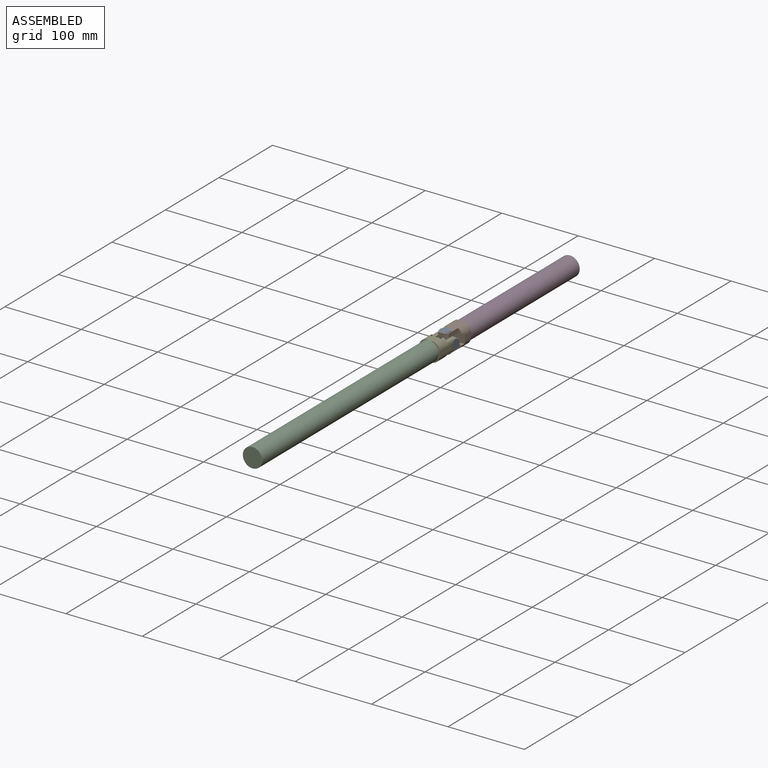
[diagram: assembled view]
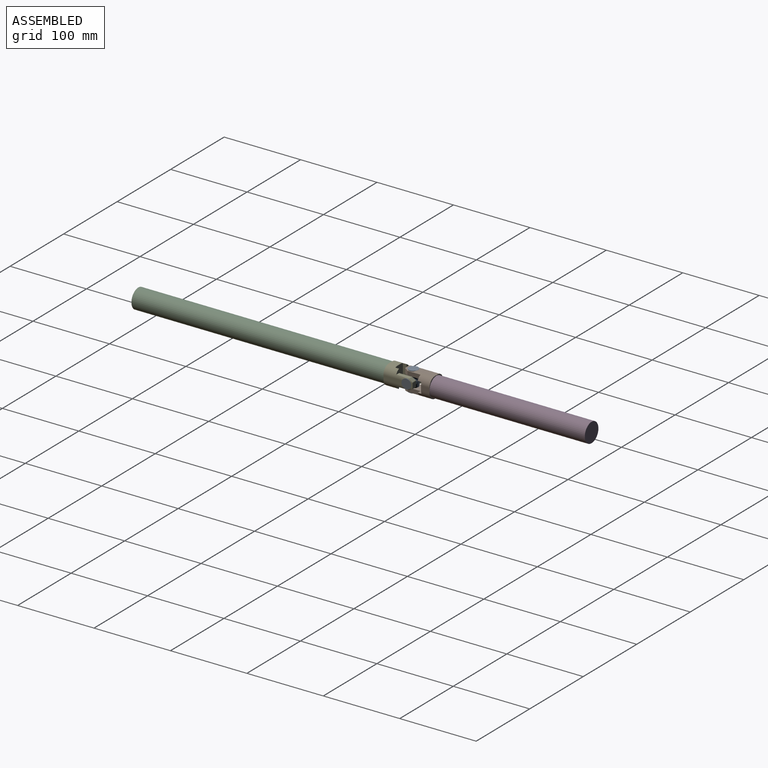
[diagram: assembled view, second angle]
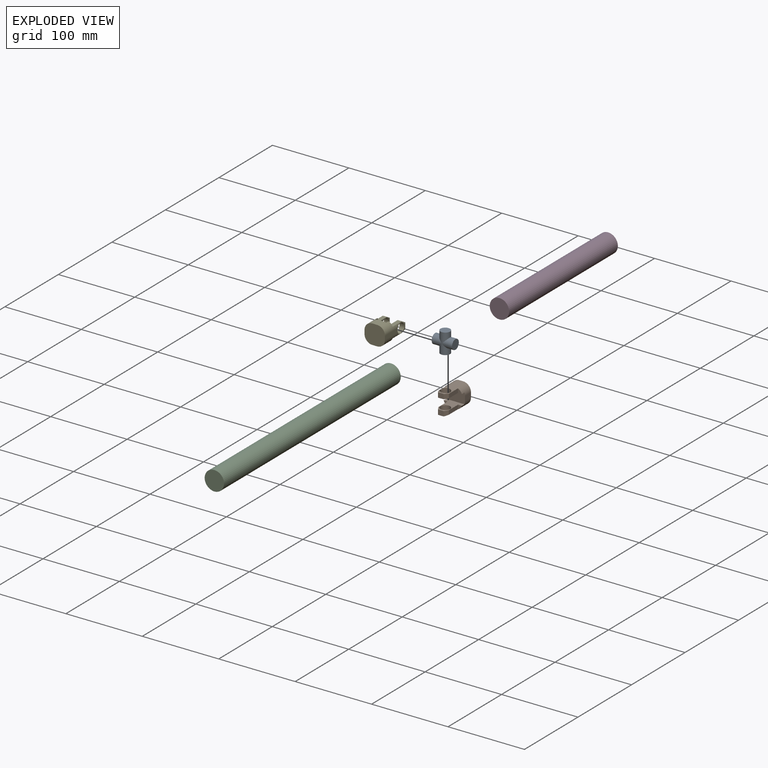
[diagram: exploded view]
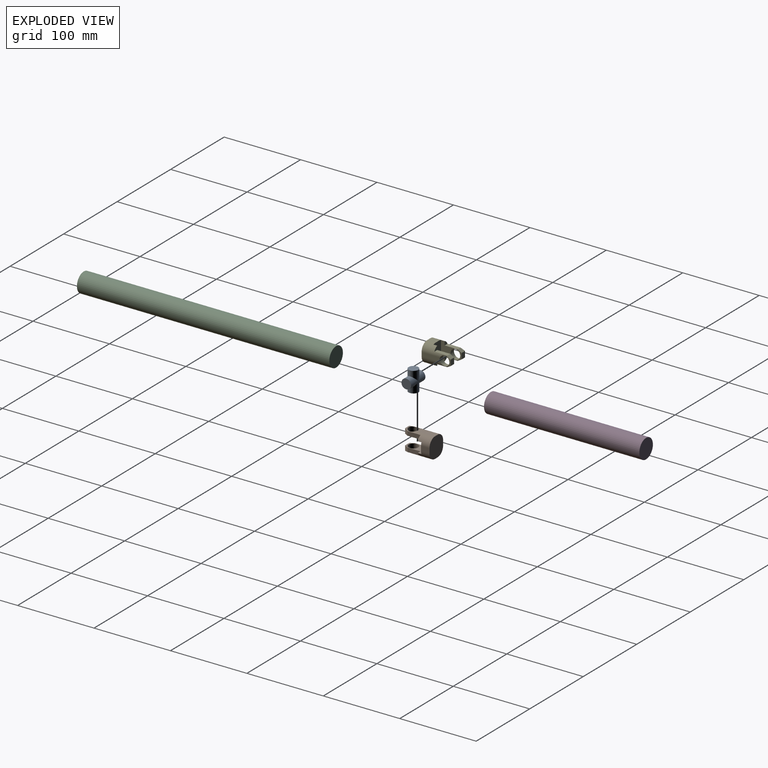
[diagram: exploded view, second angle]
ASSEMBLY  parts=5 mates=4
PART A: 8 faces, bbox 26.7x26.7x12.7 mm
  f0: cylinder r=6.35mm len=13.34mm, axis (0,1,0), area 370.8mm2, adj f1,f3,f6
  f1: plane 12.7x12.7mm, normal (0,-1,0), area 126.7mm2, adj f0
  f2: plane 12.7x12.7mm, normal (-1,0,0), area 126.7mm2, adj f3
  f3: cylinder r=6.35mm len=13.34mm, axis (-1,0,0), area 370.8mm2, adj f0,f2,f5
  f4: plane 12.7x12.7mm, normal (0,1,0), area 126.7mm2, adj f5
  f5: cylinder r=6.35mm len=13.34mm, axis (0,1,0), area 370.8mm2, adj f3,f4,f6
  f6: cylinder r=6.35mm len=13.34mm, axis (-1,0,0), area 370.8mm2, adj f0,f5,f7
  f7: plane 12.7x12.7mm, normal (1,0,0), area 126.7mm2, adj f6
PART B: 34 faces, bbox 38.2x25.5x26.8 mm
  f0: plane 27.01x23.95mm, normal (0,0,-1), area 278.8mm2, adj f3,f5,f6,f8,f12,f13,f18,f22
  f1: plane 27.01x23.92mm, normal (0,0,1), area 278.4mm2, adj f2,f4,f7,f9,f10,f11,f18,f19
  f2: cylinder r=10.16mm len=6.35mm, axis (0,0,-1), area 8.3mm2, adj f1,f11,f19,f32
  f3: cylinder r=10.16mm len=6.35mm, axis (0,0,-1), area 8.3mm2, adj f0,f12,f22,f31
  f4: cylinder r=10.16mm len=6.35mm, axis (0,0,1), area 8.4mm2, adj f1,f10,f19,f33
  f5: cylinder r=10.16mm len=6.35mm, axis (0,0,1), area 8.4mm2, adj f0,f13,f22,f30
  f6: plane 16.98x5.41mm, normal (0,-1,0), area 91.6mm2, adj f0,f13,f26,f30
  f7: plane 17x5.38mm, normal (0,-1,0), area 91.4mm2, adj f1,f10,f27,f33
  f8: plane 17.03x5.41mm, normal (0,1,0), area 91.9mm2, adj f0,f12,f28,f31
  f9: plane 17.06x5.38mm, normal (0,1,0), area 91.7mm2, adj f1,f11,f29,f32
  f10: cylinder r=10.16mm len=38.1mm, axis (-1,0,0), area 293.9mm2, adj f1,f4,f7,f15,f16,f18,f20,f23
  f11: cylinder r=10.16mm len=38.1mm, axis (1,0,0), area 294mm2, adj f1,f2,f9,f15,f16,f17,f18,f20
  f12: cylinder r=10.16mm len=38.11mm, axis (-1,0,0), area 294.4mm2, adj f0,f3,f8,f14,f17,f18,f20,f21
  f13: cylinder r=10.16mm len=38.11mm, axis (1,0,0), area 294.3mm2, adj f0,f5,f6,f14,f18,f20,f21,f23
  f14: plane 24.1x5.08mm, normal (0,0,1), area 120.6mm2, adj f12,f13,f20,f24
  f15: plane 24.09x5.08mm, normal (0,0,-1), area 120.6mm2, adj f10,f11,f20,f25
  f16: plane 5.08x2.37mm, normal (0,0,-1), area 10.2mm2, adj f10,f11,f19,f25
  f17: plane 11.09x6.4mm, normal (0,1,0), area 70.9mm2, adj f11,f12,f18,f20
  f18: plane 25.4x13.97mm, normal (-1,0,0), area 351.2mm2, adj f0,f1,f10,f11,f12,f13,f17,f23
  f19: plane 6.35x5.08mm, normal (-1,0,0), area 32.3mm2, adj f1,f2,f4,f16
  f20: plane 26.73x25.41mm, normal (1,0,0), area 590.1mm2, adj f10,f11,f12,f13,f14,f15,f17,f23
  f21: plane 5.08x2.37mm, normal (0,0,1), area 10.2mm2, adj f12,f13,f22,f24
  f22: plane 6.35x5.08mm, normal (-1,0,0), area 32.3mm2, adj f0,f3,f5,f21
  f23: plane 11.09x6.4mm, normal (0,-1,0), area 70.9mm2, adj f10,f13,f18,f20
  f24: cylinder r=6.35mm len=12.7mm, axis (0,0,-1), area 242.6mm2, adj f0,f12,f13,f14,f21
  f25: cylinder r=6.35mm len=12.7mm, axis (0,0,-1), area 242.2mm2, adj f1,f10,f11,f15,f16
  f26: plane 5.41x5.09mm, normal (-1,0,0), area 17.3mm2, adj f0,f6,f13
  f27: plane 5.38x5.08mm, normal (-1,0,0), area 17.1mm2, adj f1,f7,f10
  f28: plane 5.41x5.09mm, normal (-1,0,0), area 17.3mm2, adj f0,f8,f12
  f29: plane 5.38x5.08mm, normal (-1,0,0), area 17.1mm2, adj f1,f9,f11
  f30: plane 6.38x5.2mm, normal (-0.51,-0.86,0), area 34.9mm2, adj f0,f5,f6,f13
  f31: plane 6.38x5.14mm, normal (-0.52,0.86,0), area 34.7mm2, adj f0,f3,f8,f12
  f32: plane 6.38x5.14mm, normal (-0.52,0.86,0), area 34.6mm2, adj f1,f2,f9,f11
  f33: plane 6.38x5.2mm, normal (-0.51,-0.86,0), area 34.9mm2, adj f1,f4,f7,f10
PART C: 3 faces, bbox 25.4x330.2x25.4 mm
  f0: cylinder r=12.7mm len=330.2mm, axis (0,1,0), area 26348.8mm2, adj f1,f2
  f1: plane 25.4x25.4mm, normal (0,1,0), area 506.7mm2, adj f0
  f2: plane 25.4x25.4mm, normal (0,-1,0), area 506.7mm2, adj f0
PART D: 3 faces, bbox 25.4x203.2x25.4 mm
  f0: cylinder r=12.7mm len=203.2mm, axis (0,1,0), area 16214.6mm2, adj f1,f2
  f1: plane 25.4x25.4mm, normal (0,-1,0), area 506.7mm2, adj f0
  f2: plane 25.4x25.4mm, normal (0,1,0), area 506.7mm2, adj f0
PART E: same geometry as B
PLACE A rot(axis=(-1,0,0),90deg) t=(-147.8,-265.62,-73.01)mm
PLACE B rot(axis=(0,0,1),90deg) t=(-160.5,-273.8,-73.07)mm
PLACE C t=(-147.84,-295.53,-69.77)mm
PLACE D t=(-147.8,-32.5,-73.04)mm
PLACE E rot(axis=(-0.58,0.58,-0.58),120deg) t=(-147.86,-257.43,-85.71)mm
MATE fastened B.f20 <-> D.f0  axis (0,1,0) through (-147.8,-235.7,-73.04)mm
MATE revolute A.f0 <-> B.f24  axis (0,0,1) through (-147.8,-265.62,-59.67)mm
MATE revolute A.f3 <-> E.f24  axis (1,0,0) through (-134.47,-265.62,-73.01)mm
MATE fastened C.f0 <-> E.f20  axis (0,1,0) through (-147.84,-295.53,-73.01)mm
